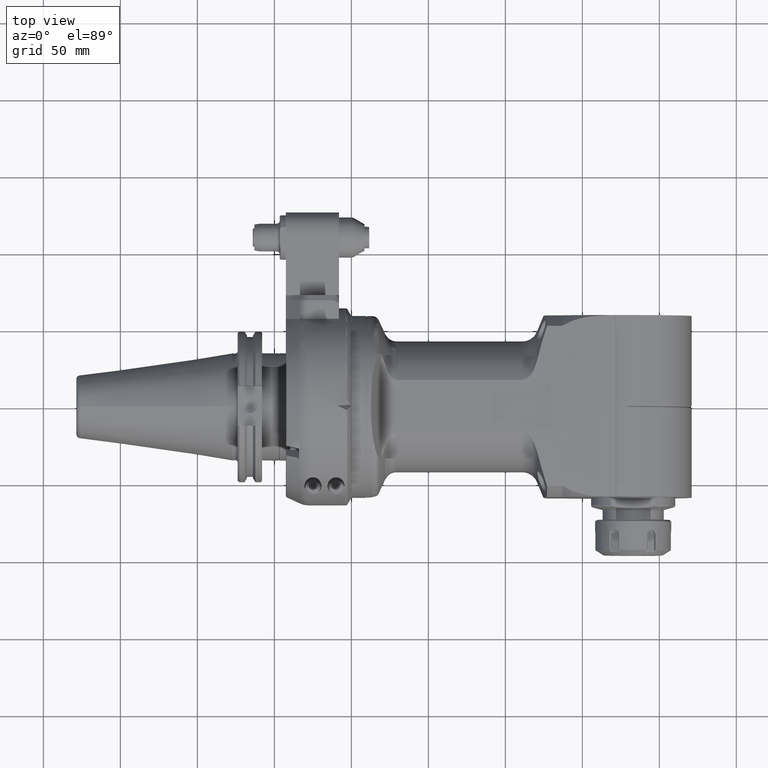
[diagram: clean part render]
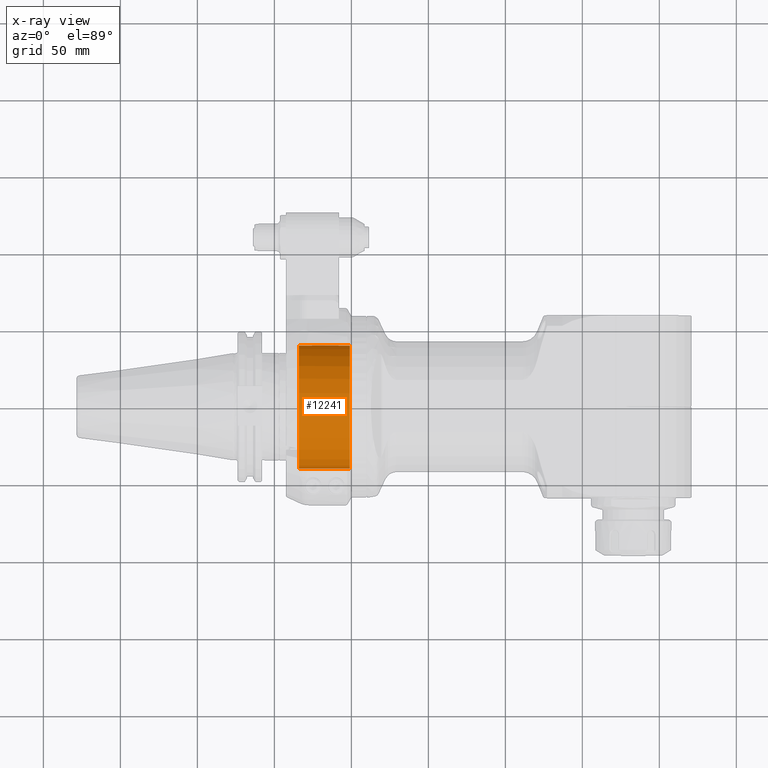
[diagram: x-ray — body ghosted, one internal face saturated and labeled with its STEP entity id]
A machine part, top view, then the same camera in x-ray: the body is ghosted and one INTERNAL B-rep face — a face not visible from any outside direction — is saturated and labeled: STEP entity #12241.
In plain terms, the highlighted cylindrical surface (partial cylindrical patch) has radius 40 mm, axis along (1, -0, -0).
Its self-contained STEP definition (entity closure, byte-faithful):
#487=CYLINDRICAL_SURFACE('',#13139,40.);
#808=CIRCLE('',#13129,40.);
#813=CIRCLE('',#13140,40.);
#814=CIRCLE('',#13141,40.);
#815=CIRCLE('',#13142,40.);
#1332=FACE_OUTER_BOUND('',#2010,.T.);
#2010=EDGE_LOOP('',(#8249,#8250,#8251,#8252,#8253,#8254,#8255,#8256));
#2956=LINE('',#17855,#3904);
#2964=LINE('',#17947,#3912);
#2977=LINE('',#18139,#3925);
#2981=LINE('',#18149,#3929);
#3904=VECTOR('',#14344,32.99999976923);
#3912=VECTOR('',#14374,32.99999976923);
#3925=VECTOR('',#14433,8.499999538462);
#3929=VECTOR('',#14443,8.499999538462);
#4875=VERTEX_POINT('',#17852);
#4876=VERTEX_POINT('',#17854);
#4890=VERTEX_POINT('',#17944);
#4891=VERTEX_POINT('',#17946);
#4910=VERTEX_POINT('',#18074);
#4920=VERTEX_POINT('',#18138);
#4922=VERTEX_POINT('',#18146);
#4923=VERTEX_POINT('',#18148);
#6226=EDGE_CURVE('',#4876,#4875,#2956,.T.);
#6247=EDGE_CURVE('',#4891,#4890,#2964,.T.);
#6272=EDGE_CURVE('',#4891,#4910,#808,.T.);
#6287=EDGE_CURVE('',#4920,#4910,#2977,.T.);
#6291=EDGE_CURVE('',#4876,#4890,#813,.T.);
#6292=EDGE_CURVE('',#4922,#4875,#814,.T.);
#6293=EDGE_CURVE('',#4922,#4923,#2981,.T.);
#6294=EDGE_CURVE('',#4920,#4923,#815,.T.);
#8249=ORIENTED_EDGE('',*,*,#6291,.F.);
#8250=ORIENTED_EDGE('',*,*,#6226,.T.);
#8251=ORIENTED_EDGE('',*,*,#6292,.F.);
#8252=ORIENTED_EDGE('',*,*,#6293,.T.);
#8253=ORIENTED_EDGE('',*,*,#6294,.F.);
#8254=ORIENTED_EDGE('',*,*,#6287,.T.);
#8255=ORIENTED_EDGE('',*,*,#6272,.F.);
#8256=ORIENTED_EDGE('',*,*,#6247,.T.);
#12241=ADVANCED_FACE('',(#1332),#487,.F.);
#13129=AXIS2_PLACEMENT_3D('',#18075,#14407,#14408);
#13139=AXIS2_PLACEMENT_3D('',#18144,#14437,#14438);
#13140=AXIS2_PLACEMENT_3D('',#18145,#14439,#14440);
#13141=AXIS2_PLACEMENT_3D('',#18147,#14441,#14442);
#13142=AXIS2_PLACEMENT_3D('',#18150,#14444,#14445);
#14344=DIRECTION('',(-1.,0.,0.));
#14374=DIRECTION('',(1.,0.,0.));
#14407=DIRECTION('center_axis',(1.,0.,0.));
#14408=DIRECTION('ref_axis',(0.,-0.999296627777989,-0.0374999961538496));
#14433=DIRECTION('',(-1.,0.,0.));
#14437=DIRECTION('center_axis',(1.,0.,0.));
#14438=DIRECTION('ref_axis',(0.,1.,-1.22464679914735E-16));
#14439=DIRECTION('center_axis',(-1.,0.,0.));
#14440=DIRECTION('ref_axis',(0.,1.,0.));
#14441=DIRECTION('center_axis',(1.,0.,0.));
#14442=DIRECTION('ref_axis',(0.,0.993651724700361,0.112499999999996));
#14443=DIRECTION('',(1.,0.,0.));
#14444=DIRECTION('center_axis',(1.,0.,0.));
#14445=DIRECTION('ref_axis',(0.,1.,0.));
#17852=CARTESIAN_POINT('',(-48.,-39.97186511112,1.499999846154));
#17854=CARTESIAN_POINT('',(-15.00000023077,-39.97186511112,1.499999846154));
#17855=CARTESIAN_POINT('',(-15.00000023077,-39.97186511112,1.499999846154));
#17944=CARTESIAN_POINT('',(-15.00000023077,-39.97186511112,-1.499999846154));
#17946=CARTESIAN_POINT('',(-48.,-39.97186511112,-1.499999846154));
#17947=CARTESIAN_POINT('',(-48.,-39.97186511112,-1.499999846154));
#18074=CARTESIAN_POINT('',(-48.,39.74606898801,-4.5));
#18075=CARTESIAN_POINT('Origin',(-48.,0.,0.));
#18138=CARTESIAN_POINT('',(-39.50000046154,39.74606898801,-4.5));
#18139=CARTESIAN_POINT('',(-39.50000046154,39.74606898801,-4.5));
#18144=CARTESIAN_POINT('Origin',(-35.07692307692,0.,0.));
#18145=CARTESIAN_POINT('Origin',(-15.00000023077,0.,0.));
#18146=CARTESIAN_POINT('',(-48.,39.74606898801,4.5));
#18147=CARTESIAN_POINT('Origin',(-48.,0.,0.));
#18148=CARTESIAN_POINT('',(-39.50000046154,39.74606898801,4.5));
#18149=CARTESIAN_POINT('',(-48.,39.74606898801,4.5));
#18150=CARTESIAN_POINT('Origin',(-39.50000046154,0.,0.));